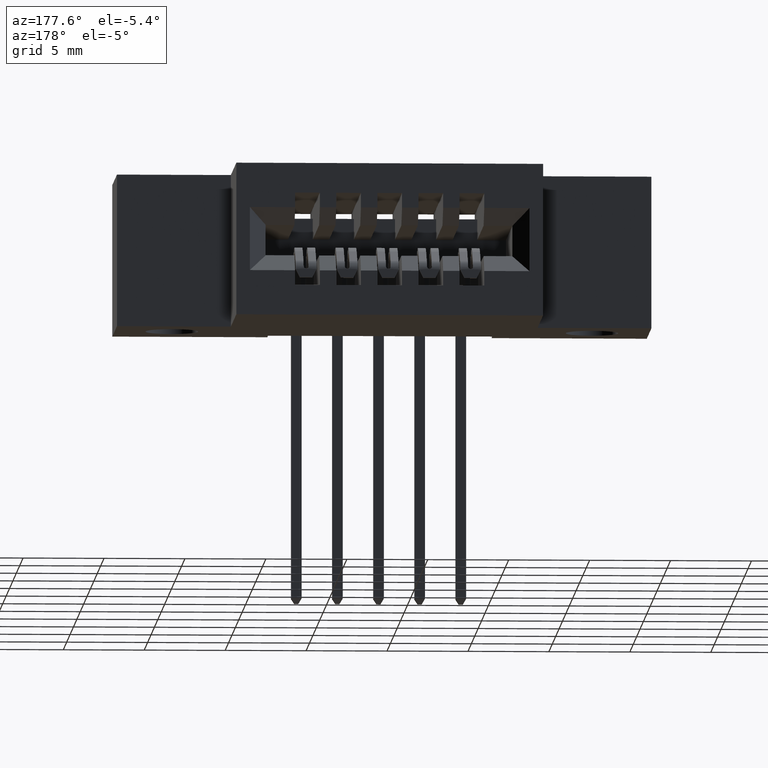
[diagram: clean part render]
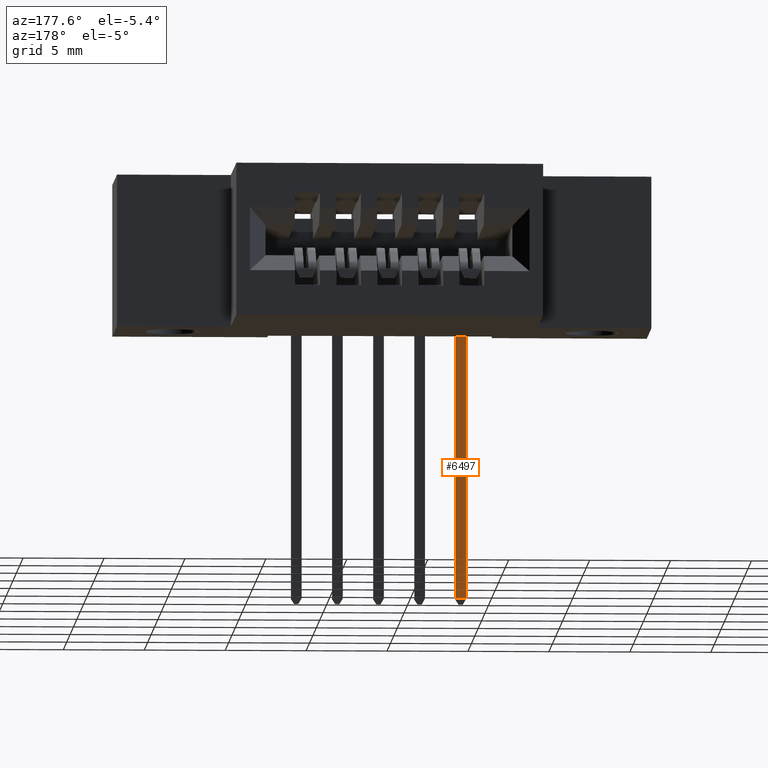
[diagram: same view with one face highlighted and labeled with its STEP entity id]
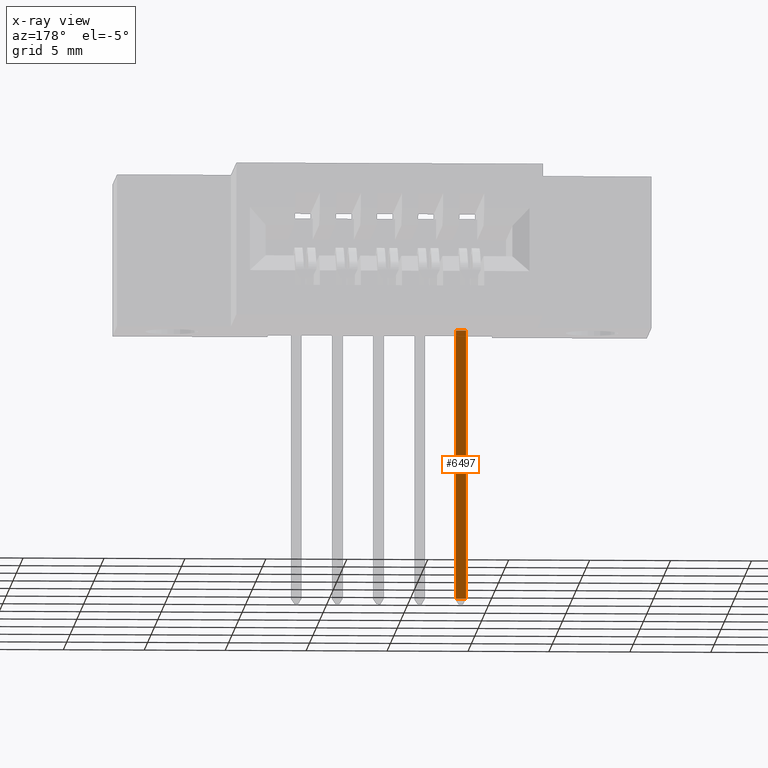
[diagram: x-ray of the same camera — body ghosted, the highlighted face saturated]
A machine part, auxiliary view. The second image highlights one B-rep face of the part: STEP entity #6497.
The next image is the same camera in x-ray: the body ghosted, the highlighted face saturated — about 1% of this face is hidden behind the body in this view.
In plain terms, the highlighted planar face has unit normal (0, -1, -0).
Its self-contained STEP definition (entity closure, byte-faithful):
#20 = DIRECTION ( 'NONE',  ( 4.103939916561338600E-013, -1.000000000000000000, 1.027382594658596700E-014 ) ) ;
#220 = VECTOR ( 'NONE', #3940, 39.37007874015748100 ) ;
#267 = VERTEX_POINT ( 'NONE', #4704 ) ;
#286 = ORIENTED_EDGE ( 'NONE', *, *, #6352, .T. ) ;
#661 = VECTOR ( 'NONE', #6163, 39.37007874015748100 ) ;
#756 = FACE_OUTER_BOUND ( 'NONE', #2902, .T. ) ;
#871 = LINE ( 'NONE', #3650, #4145 ) ;
#1497 = CARTESIAN_POINT ( 'NONE',  ( 0.6957132034362073500, -0.03750000000046558500, 0.01250000000141612500 ) ) ;
#1765 = DIRECTION ( 'NONE',  ( -1.638611603453288400E-012, 1.027382594658554100E-014, -1.000000000000000000 ) ) ;
#1835 = AXIS2_PLACEMENT_3D ( 'NONE', #3902, #5866, #6568 ) ;
#2600 = LINE ( 'NONE', #6959, #661 ) ;
#2704 = PLANE ( 'NONE',  #1835 ) ;
#2902 = EDGE_LOOP ( 'NONE', ( #5805, #286, #6009, #4443 ) ) ;
#3650 = CARTESIAN_POINT ( 'NONE',  ( 0.6957132034360766800, -0.03750000000021445900, -0.01249999999848867700 ) ) ;
#3902 = CARTESIAN_POINT ( 'NONE',  ( 0.6957132034362073500, -0.03750000000046558500, 0.01250000000141612500 ) ) ;
#3940 = DIRECTION ( 'NONE',  ( 4.103939916561338600E-013, -1.000000000000000000, 1.027382594658596700E-014 ) ) ;
#4145 = VECTOR ( 'NONE', #20, 39.37007874015748100 ) ;
#4416 = CARTESIAN_POINT ( 'NONE',  ( 0.6957132034360766800, -0.03750000000021445900, -0.01249999999848867700 ) ) ;
#4443 = ORIENTED_EDGE ( 'NONE', *, *, #6227, .T. ) ;
#4631 = VERTEX_POINT ( 'NONE', #4416 ) ;
#4704 = CARTESIAN_POINT ( 'NONE',  ( 0.6957132034358979300, -0.6920000000005159800, 0.01250000000184775700 ) ) ;
#5390 = CARTESIAN_POINT ( 'NONE',  ( 0.6957132034362073500, -0.03750000000046558500, 0.01250000000141612500 ) ) ;
#5530 = CARTESIAN_POINT ( 'NONE',  ( 0.6957132034357307300, -0.6920000000000722200, -0.01249999999815539100 ) ) ;
#5686 = CARTESIAN_POINT ( 'NONE',  ( 0.6957132034362073500, -0.03750000000046558500, 0.01250000000141612500 ) ) ;
#5805 = ORIENTED_EDGE ( 'NONE', *, *, #6320, .T. ) ;
#5866 = DIRECTION ( 'NONE',  ( 1.000000000000000000, -4.103939916561262400E-013, -1.638611603453292600E-012 ) ) ;
#6009 = ORIENTED_EDGE ( 'NONE', *, *, #6387, .F. ) ;
#6032 = VERTEX_POINT ( 'NONE', #1497 ) ;
#6163 = DIRECTION ( 'NONE',  ( 1.638611603453288400E-012, -1.027382594658554100E-014, 1.000000000000000000 ) ) ;
#6224 = VECTOR ( 'NONE', #1765, 39.37007874015748100 ) ;
#6227 = EDGE_CURVE ( 'NONE', #6032, #4631, #7743, .T. ) ;
#6320 = EDGE_CURVE ( 'NONE', #4631, #6426, #871, .T. ) ;
#6352 = EDGE_CURVE ( 'NONE', #6426, #267, #2600, .T. ) ;
#6387 = EDGE_CURVE ( 'NONE', #6032, #267, #6982, .T. ) ;
#6426 = VERTEX_POINT ( 'NONE', #5530 ) ;
#6497 = ADVANCED_FACE ( 'NONE', ( #756 ), #2704, .F. ) ;
#6568 = DIRECTION ( 'NONE',  ( -1.638611603453288400E-012, 1.027382594658554100E-014, -1.000000000000000000 ) ) ;
#6959 = CARTESIAN_POINT ( 'NONE',  ( 0.6957132034358979300, -0.6920000000005159800, 0.01250000000184775700 ) ) ;
#6982 = LINE ( 'NONE', #5686, #220 ) ;
#7743 = LINE ( 'NONE', #5390, #6224 ) ;